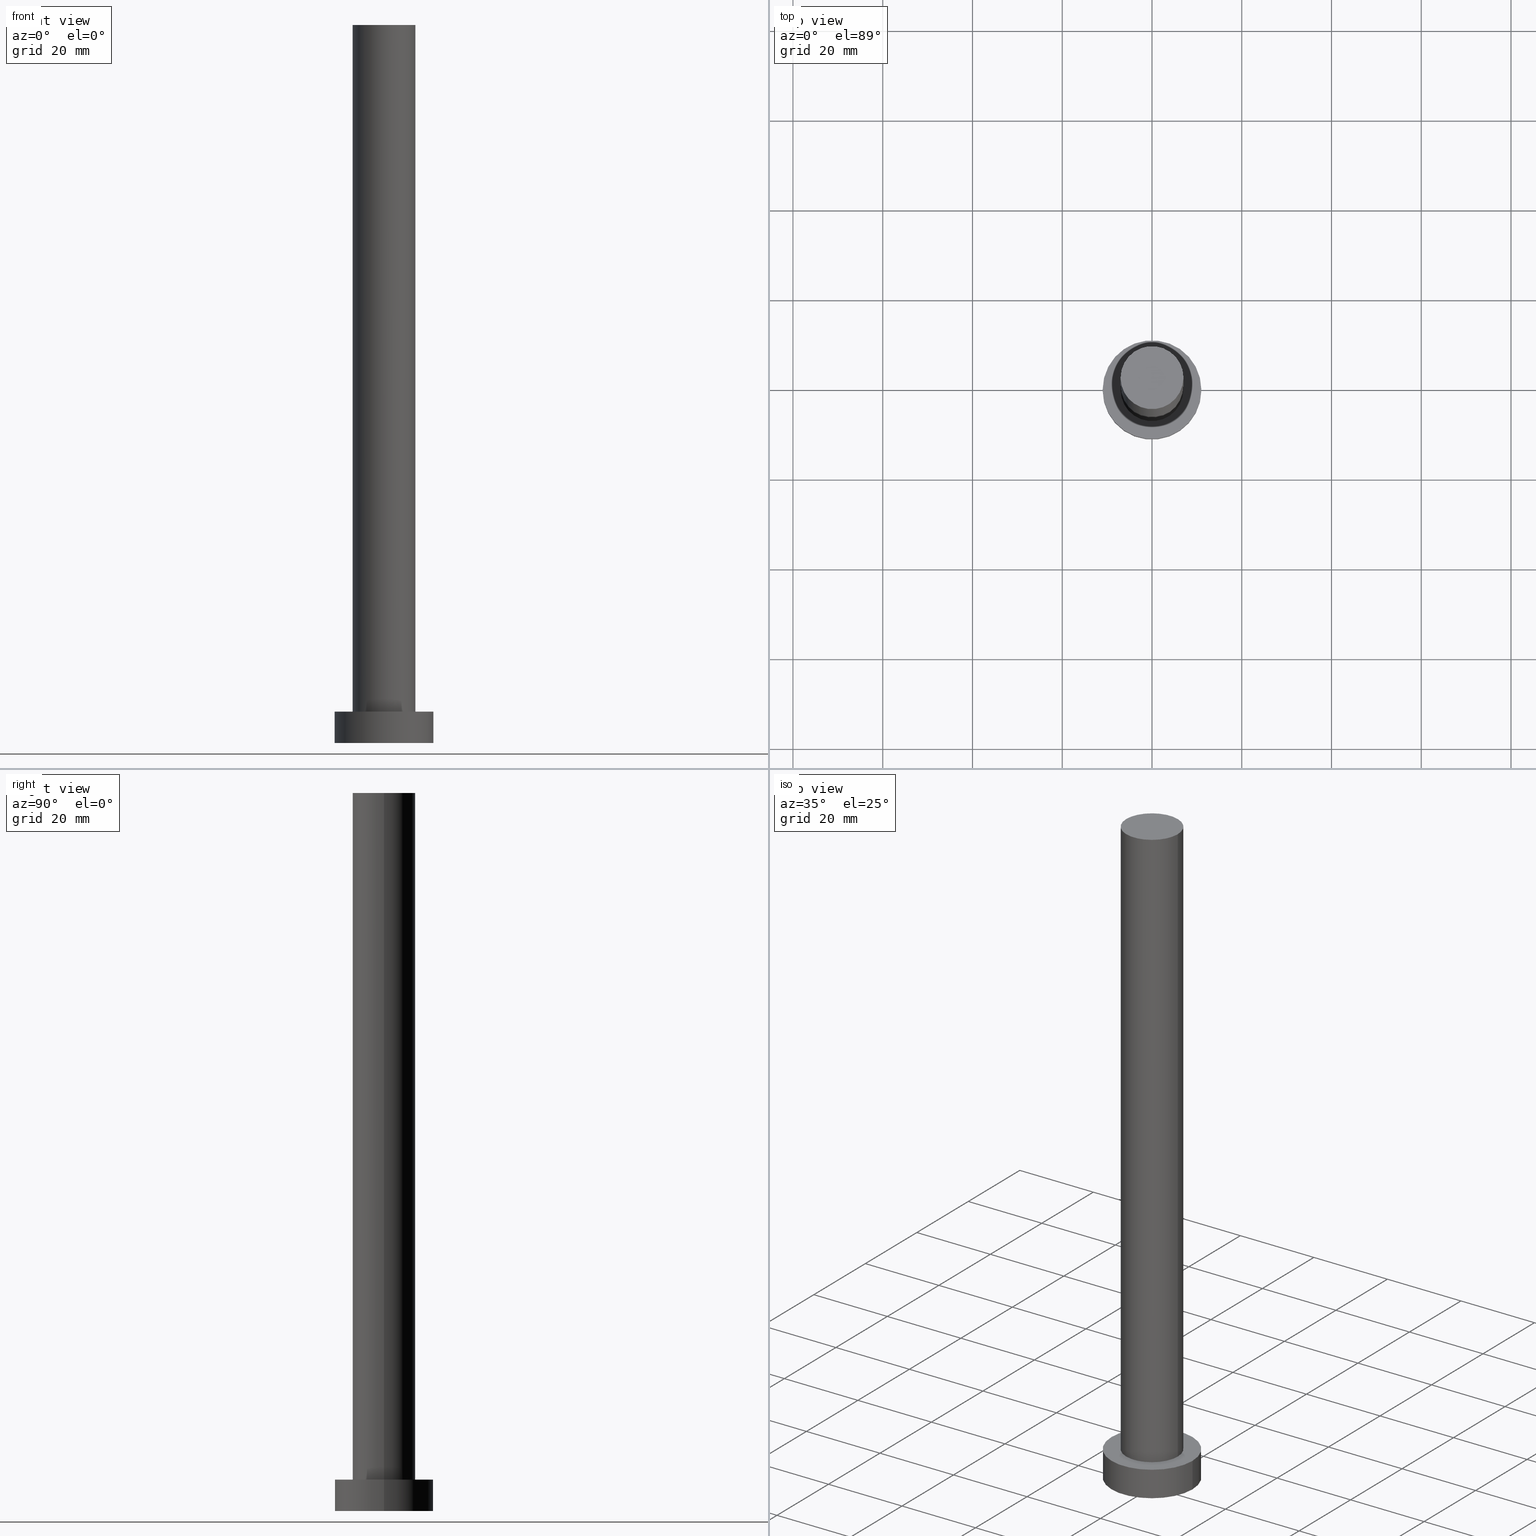
[diagram: canonical four-view strip — front | top / right | iso, engineering-drawing reading convention]
A machine part, canonical four-view strip (front | top / right | iso — engineering-drawing reading convention). The complete STEP part file that produces these views, byte-faithful:
ISO-10303-21;
HEADER;
FILE_DESCRIPTION (( 'STEP AP203' ),
    '1' );
FILE_NAME ('0e84.STEP',
    '2023-02-13T10:16:42',
    ( '' ),
    ( '' ),
    'SwSTEP 2.0',
    'SolidWorks 2019',
    '' );
FILE_SCHEMA (( 'CONFIG_CONTROL_DESIGN' ));
ENDSEC;

DATA;
#1 = ORIENTED_EDGE ( 'NONE', *, *, #249, .T. ) ;
#2 = CALENDAR_DATE ( 2023, 13, 2 ) ;
#3 = EDGE_LOOP ( 'NONE', ( #81, #193 ) ) ;
#4 = AXIS2_PLACEMENT_3D ( 'NONE', #6, #48, #118 ) ;
#5 = ORIENTED_EDGE ( 'NONE', *, *, #222, .F. ) ;
#6 = CARTESIAN_POINT ( 'NONE',  ( 0.000000000000000000, 0.000000000000000000, 7.000000000000000000 ) ) ;
#7 = ORIENTED_EDGE ( 'NONE', *, *, #63, .T. ) ;
#8 = CARTESIAN_POINT ( 'NONE',  ( 11.00000000000000000, 1.347111479062088405E-15, 7.000000000000000000 ) ) ;
#9 = SECURITY_CLASSIFICATION ( '', '', #200 ) ;
#10 = CARTESIAN_POINT ( 'NONE',  ( 11.00000000000000000, 1.347111479062088405E-15, 0.000000000000000000 ) ) ;
#11 = DIRECTION ( 'NONE',  ( 0.000000000000000000, 0.000000000000000000, 1.000000000000000000 ) ) ;
#12 = MANIFOLD_SOLID_BREP ( 'P�idat vysunut�m3', #236 ) ;
#13 = CARTESIAN_POINT ( 'NONE',  ( 0.000000000000000000, 0.000000000000000000, 7.000000000000000000 ) ) ;
#14 = CALENDAR_DATE ( 2023, 13, 2 ) ;
#15 = ADVANCED_FACE ( 'NONE', ( #44 ), #82, .F. ) ;
#16 = APPROVAL_PERSON_ORGANIZATION ( #53, #89, #37 ) ;
#17 = DIRECTION ( 'NONE',  ( 1.000000000000000000, 0.000000000000000000, -0.000000000000000000 ) ) ;
#18 = EDGE_LOOP ( 'NONE', ( #95, #172, #225, #134 ) ) ;
#19 = PERSON_AND_ORGANIZATION_ROLE ( 'creator' ) ;
#20 = FACE_OUTER_BOUND ( 'NONE', #114, .T. ) ;
#21 = VERTEX_POINT ( 'NONE', #83 ) ;
#22 = PERSON_AND_ORGANIZATION_ROLE ( 'creator' ) ;
#23 = CARTESIAN_POINT ( 'NONE',  ( 7.000000000000000888, 8.572527594031474176E-16, 160.0000000000000000 ) ) ;
#24 = DIRECTION ( 'NONE',  ( 0.000000000000000000, 0.000000000000000000, 1.000000000000000000 ) ) ;
#25 = DATE_AND_TIME ( #2, #52 ) ;
#26 = ORIENTED_EDGE ( 'NONE', *, *, #35, .F. ) ;
#27 = CARTESIAN_POINT ( 'NONE',  ( -11.00000000000000000, 0.000000000000000000, 0.000000000000000000 ) ) ;
#28 = DIRECTION ( 'NONE',  ( 1.000000000000000000, 0.000000000000000000, 0.000000000000000000 ) ) ;
#29 = FACE_OUTER_BOUND ( 'NONE', #18, .T. ) ;
#30 = EDGE_CURVE ( 'NONE', #21, #197, #61, .T. ) ;
#31 = VECTOR ( 'NONE', #156, 1000.000000000000000 ) ;
#32 = CARTESIAN_POINT ( 'NONE',  ( -7.000000000000000888, 0.000000000000000000, 160.0000000000000000 ) ) ;
#33 = AXIS2_PLACEMENT_3D ( 'NONE', #121, #11, #251 ) ;
#34 = PERSON_AND_ORGANIZATION ( #232, #137 ) ;
#35 = EDGE_CURVE ( 'NONE', #21, #97, #148, .T. ) ;
#36 = FACE_BOUND ( 'NONE', #112, .T. ) ;
#37 = APPROVAL_ROLE ( '' ) ;
#38 =( GEOMETRIC_REPRESENTATION_CONTEXT ( 3 ) GLOBAL_UNCERTAINTY_ASSIGNED_CONTEXT ( ( #41 ) ) GLOBAL_UNIT_ASSIGNED_CONTEXT ( ( #210, #170, #174 ) ) REPRESENTATION_CONTEXT ( 'NONE', 'WORKASPACE' ) );
#39 = APPROVAL_STATUS ( 'not_yet_approved' ) ;
#40 = CARTESIAN_POINT ( 'NONE',  ( 0.000000000000000000, 0.000000000000000000, 160.0000000000000000 ) ) ;
#41 = UNCERTAINTY_MEASURE_WITH_UNIT (LENGTH_MEASURE( 1.000000000000000082E-05 ), #210, 'distance_accuracy_value', 'NONE');
#42 = ORIENTED_EDGE ( 'NONE', *, *, #163, .T. ) ;
#43 = DATE_AND_TIME ( #60, #186 ) ;
#44 = FACE_OUTER_BOUND ( 'NONE', #3, .T. ) ;
#45 = CARTESIAN_POINT ( 'NONE',  ( 0.000000000000000000, 0.000000000000000000, 160.0000000000000000 ) ) ;
#46 = PERSON_AND_ORGANIZATION ( #232, #137 ) ;
#47 = LOCAL_TIME ( 11, 16, 42.00000000000000000, #129 ) ;
#48 = DIRECTION ( 'NONE',  ( -0.000000000000000000, -0.000000000000000000, -1.000000000000000000 ) ) ;
#49 = CC_DESIGN_PERSON_AND_ORGANIZATION_ASSIGNMENT ( #62, #199, ( #215 ) ) ;
#50 = DIRECTION ( 'NONE',  ( -1.000000000000000000, 0.000000000000000000, 0.000000000000000000 ) ) ;
#51 = CARTESIAN_POINT ( 'NONE',  ( 0.000000000000000000, 0.000000000000000000, 160.0000000000000000 ) ) ;
#52 = LOCAL_TIME ( 11, 16, 42.00000000000000000, #223 ) ;
#53 = PERSON_AND_ORGANIZATION ( #232, #137 ) ;
#54 = ADVANCED_FACE ( 'NONE', ( #224 ), #181, .T. ) ;
#55 = CARTESIAN_POINT ( 'NONE',  ( 7.000000000000000888, 8.572527594031474176E-16, 7.000000000000000000 ) ) ;
#56 = APPROVAL_DATE_TIME ( #235, #89 ) ;
#57 = APPROVAL_STATUS ( 'not_yet_approved' ) ;
#58 = AXIS2_PLACEMENT_3D ( 'NONE', #45, #24, #98 ) ;
#59 = EDGE_CURVE ( 'NONE', #111, #161, #246, .T. ) ;
#60 = CALENDAR_DATE ( 2023, 13, 2 ) ;
#61 = LINE ( 'NONE', #23, #31 ) ;
#62 = PERSON_AND_ORGANIZATION ( #232, #137 ) ;
#63 = EDGE_CURVE ( 'NONE', #111, #84, #167, .T. ) ;
#64 = CARTESIAN_POINT ( 'NONE',  ( 0.000000000000000000, 0.000000000000000000, 0.000000000000000000 ) ) ;
#65 = ORIENTED_EDGE ( 'NONE', *, *, #35, .T. ) ;
#66 = CARTESIAN_POINT ( 'NONE',  ( 0.000000000000000000, 0.000000000000000000, 7.000000000000000000 ) ) ;
#67 = DIRECTION ( 'NONE',  ( -0.000000000000000000, -0.000000000000000000, -1.000000000000000000 ) ) ;
#68 = FACE_OUTER_BOUND ( 'NONE', #133, .T. ) ;
#69 = CARTESIAN_POINT ( 'NONE',  ( 0.000000000000000000, 0.000000000000000000, 0.000000000000000000 ) ) ;
#70 = CYLINDRICAL_SURFACE ( 'NONE', #78, 11.00000000000000000 ) ;
#71 = APPROVAL ( #39, 'NEUR�EN�' ) ;
#72 = DATE_AND_TIME ( #14, #47 ) ;
#73 = AXIS2_PLACEMENT_3D ( 'NONE', #69, #139, #28 ) ;
#74 = CARTESIAN_POINT ( 'NONE',  ( 0.000000000000000000, 0.000000000000000000, 7.000000000000000000 ) ) ;
#75 = EDGE_CURVE ( 'NONE', #144, #197, #106, .T. ) ;
#76 = CALENDAR_DATE ( 2023, 13, 2 ) ;
#77 = APPLICATION_CONTEXT ( 'configuration controlled 3d designs of mechanical parts and assemblies' ) ;
#78 = AXIS2_PLACEMENT_3D ( 'NONE', #13, #227, #207 ) ;
#79 = DIRECTION ( 'NONE',  ( 1.000000000000000000, 0.000000000000000000, 0.000000000000000000 ) ) ;
#80 = PERSON_AND_ORGANIZATION ( #232, #137 ) ;
#81 = ORIENTED_EDGE ( 'NONE', *, *, #177, .F. ) ;
#82 = PLANE ( 'NONE',  #253 ) ;
#83 = CARTESIAN_POINT ( 'NONE',  ( 7.000000000000000888, 8.572527594031474176E-16, 160.0000000000000000 ) ) ;
#84 = VERTEX_POINT ( 'NONE', #27 ) ;
#85 = AXIS2_PLACEMENT_3D ( 'NONE', #152, #92, #17 ) ;
#86 = DIRECTION ( 'NONE',  ( 0.000000000000000000, 0.000000000000000000, 1.000000000000000000 ) ) ;
#87 = CARTESIAN_POINT ( 'NONE',  ( 0.000000000000000000, 0.000000000000000000, 0.000000000000000000 ) ) ;
#88 = AXIS2_PLACEMENT_3D ( 'NONE', #147, #90, #128 ) ;
#89 = APPROVAL ( #212, 'NEUR�EN�' ) ;
#90 = DIRECTION ( 'NONE',  ( 0.000000000000000000, 0.000000000000000000, 1.000000000000000000 ) ) ;
#91 = LOCAL_TIME ( 11, 16, 42.00000000000000000, #254 ) ;
#92 = DIRECTION ( 'NONE',  ( 0.000000000000000000, 0.000000000000000000, 1.000000000000000000 ) ) ;
#93 = DIRECTION ( 'NONE',  ( 1.000000000000000000, 0.000000000000000000, 0.000000000000000000 ) ) ;
#94 = VERTEX_POINT ( 'NONE', #10 ) ;
#95 = ORIENTED_EDGE ( 'NONE', *, *, #30, .F. ) ;
#96 = AXIS2_PLACEMENT_3D ( 'NONE', #87, #164, #135 ) ;
#97 = VERTEX_POINT ( 'NONE', #203 ) ;
#98 = DIRECTION ( 'NONE',  ( 1.000000000000000000, 0.000000000000000000, 0.000000000000000000 ) ) ;
#99 = DATE_TIME_ROLE ( 'classification_date' ) ;
#100 = DIRECTION ( 'NONE',  ( -0.000000000000000000, -0.000000000000000000, -1.000000000000000000 ) ) ;
#101 = VECTOR ( 'NONE', #104, 1000.000000000000000 ) ;
#102 = VECTOR ( 'NONE', #113, 1000.000000000000000 ) ;
#103 = CC_DESIGN_APPROVAL ( #218, ( #9 ) ) ;
#104 = DIRECTION ( 'NONE',  ( -0.000000000000000000, -0.000000000000000000, -1.000000000000000000 ) ) ;
#105 = DIRECTION ( 'NONE',  ( -0.000000000000000000, -0.000000000000000000, -1.000000000000000000 ) ) ;
#106 = CIRCLE ( 'NONE', #119, 7.000000000000000888 ) ;
#107 = DIRECTION ( 'NONE',  ( 1.000000000000000000, 0.000000000000000000, 0.000000000000000000 ) ) ;
#108 = PERSON_AND_ORGANIZATION_ROLE ( 'design_owner' ) ;
#109 = ADVANCED_FACE ( 'NONE', ( #68 ), #252, .T. ) ;
#110 = DIRECTION ( 'NONE',  ( 0.000000000000000000, 0.000000000000000000, 1.000000000000000000 ) ) ;
#111 = VERTEX_POINT ( 'NONE', #136 ) ;
#112 = EDGE_LOOP ( 'NONE', ( #198, #5 ) ) ;
#113 = DIRECTION ( 'NONE',  ( -0.000000000000000000, -0.000000000000000000, -1.000000000000000000 ) ) ;
#114 = EDGE_LOOP ( 'NONE', ( #42, #65 ) ) ;
#115 = VECTOR ( 'NONE', #100, 1000.000000000000000 ) ;
#116 = CC_DESIGN_PERSON_AND_ORGANIZATION_ASSIGNMENT ( #46, #158, ( #9 ) ) ;
#117 = CC_DESIGN_APPROVAL ( #71, ( #215 ) ) ;
#118 = DIRECTION ( 'NONE',  ( -1.000000000000000000, 0.000000000000000000, 0.000000000000000000 ) ) ;
#119 = AXIS2_PLACEMENT_3D ( 'NONE', #123, #86, #165 ) ;
#120 = CC_DESIGN_APPROVAL ( #89, ( #182 ) ) ;
#121 = CARTESIAN_POINT ( 'NONE',  ( 0.000000000000000000, 0.000000000000000000, 160.0000000000000000 ) ) ;
#122 = EDGE_CURVE ( 'NONE', #94, #84, #142, .T. ) ;
#123 = CARTESIAN_POINT ( 'NONE',  ( 0.000000000000000000, 0.000000000000000000, 7.000000000000000000 ) ) ;
#124 = AXIS2_PLACEMENT_3D ( 'NONE', #130, #194, #93 ) ;
#125 = MECHANICAL_CONTEXT ( 'NONE', #140, 'mechanical' ) ;
#126 = CC_DESIGN_SECURITY_CLASSIFICATION ( #9, ( #215 ) ) ;
#127 = PERSON_AND_ORGANIZATION ( #232, #137 ) ;
#128 = DIRECTION ( 'NONE',  ( 1.000000000000000000, 0.000000000000000000, 0.000000000000000000 ) ) ;
#129 = COORDINATED_UNIVERSAL_TIME_OFFSET ( 1, 0, .AHEAD. ) ;
#130 = CARTESIAN_POINT ( 'NONE',  ( 0.000000000000000000, 0.000000000000000000, 7.000000000000000000 ) ) ;
#131 = ADVANCED_FACE ( 'NONE', ( #138 ), #70, .T. ) ;
#132 = COORDINATED_UNIVERSAL_TIME_OFFSET ( 1, 0, .AHEAD. ) ;
#133 = EDGE_LOOP ( 'NONE', ( #26, #237, #154, #245 ) ) ;
#134 = ORIENTED_EDGE ( 'NONE', *, *, #75, .T. ) ;
#135 = DIRECTION ( 'NONE',  ( 1.000000000000000000, 0.000000000000000000, 0.000000000000000000 ) ) ;
#136 = CARTESIAN_POINT ( 'NONE',  ( -11.00000000000000000, 0.000000000000000000, 7.000000000000000000 ) ) ;
#137 = ORGANIZATION ( 'NEUR�EN�', 'NEUR�EN�', '' ) ;
#138 = FACE_OUTER_BOUND ( 'NONE', #179, .T. ) ;
#139 = DIRECTION ( 'NONE',  ( 0.000000000000000000, 0.000000000000000000, 1.000000000000000000 ) ) ;
#140 = APPLICATION_CONTEXT ( 'configuration controlled 3d designs of mechanical parts and assemblies' ) ;
#141 = CARTESIAN_POINT ( 'NONE',  ( 0.000000000000000000, 0.000000000000000000, 160.0000000000000000 ) ) ;
#142 = CIRCLE ( 'NONE', #96, 11.00000000000000000 ) ;
#143 = DIRECTION ( 'NONE',  ( 1.000000000000000000, 0.000000000000000000, -0.000000000000000000 ) ) ;
#144 = VERTEX_POINT ( 'NONE', #226 ) ;
#145 = PRODUCT_RELATED_PRODUCT_CATEGORY ( 'detail', '', ( #146 ) ) ;
#146 = PRODUCT ( '0e84', '0e84', '', ( #125 ) ) ;
#147 = CARTESIAN_POINT ( 'NONE',  ( 0.000000000000000000, 0.000000000000000000, 0.000000000000000000 ) ) ;
#148 = CIRCLE ( 'NONE', #58, 7.000000000000000888 ) ;
#149 = DESIGN_CONTEXT ( 'detailed design', #77, 'design' ) ;
#150 = ADVANCED_FACE ( 'NONE', ( #29 ), #229, .T. ) ;
#151 = ORIENTED_EDGE ( 'NONE', *, *, #59, .T. ) ;
#152 = CARTESIAN_POINT ( 'NONE',  ( 0.000000000000000000, 0.000000000000000000, 7.000000000000000000 ) ) ;
#153 = ORIENTED_EDGE ( 'NONE', *, *, #189, .T. ) ;
#154 = ORIENTED_EDGE ( 'NONE', *, *, #222, .T. ) ;
#155 = APPROVAL_PERSON_ORGANIZATION ( #80, #218, #183 ) ;
#156 = DIRECTION ( 'NONE',  ( -0.000000000000000000, -0.000000000000000000, -1.000000000000000000 ) ) ;
#157 = APPROVAL_DATE_TIME ( #244, #71 ) ;
#158 = PERSON_AND_ORGANIZATION_ROLE ( 'classification_officer' ) ;
#159 = CC_DESIGN_DATE_AND_TIME_ASSIGNMENT ( #72, #214, ( #182 ) ) ;
#160 = AXIS2_PLACEMENT_3D ( 'NONE', #66, #230, #107 ) ;
#161 = VERTEX_POINT ( 'NONE', #185 ) ;
#162 = AXIS2_PLACEMENT_3D ( 'NONE', #74, #110, #79 ) ;
#163 = EDGE_CURVE ( 'NONE', #97, #21, #221, .T. ) ;
#164 = DIRECTION ( 'NONE',  ( 0.000000000000000000, 0.000000000000000000, 1.000000000000000000 ) ) ;
#165 = DIRECTION ( 'NONE',  ( 1.000000000000000000, 0.000000000000000000, 0.000000000000000000 ) ) ;
#166 = CARTESIAN_POINT ( 'NONE',  ( -11.00000000000000000, 0.000000000000000000, 7.000000000000000000 ) ) ;
#167 = LINE ( 'NONE', #166, #101 ) ;
#168 = ORIENTED_EDGE ( 'NONE', *, *, #59, .F. ) ;
#169 = AXIS2_PLACEMENT_3D ( 'NONE', #40, #188, #143 ) ;
#170 =( NAMED_UNIT ( * ) PLANE_ANGLE_UNIT ( ) SI_UNIT ( $, .RADIAN. ) );
#171 = COORDINATED_UNIVERSAL_TIME_OFFSET ( 1, 0, .AHEAD. ) ;
#172 = ORIENTED_EDGE ( 'NONE', *, *, #163, .F. ) ;
#173 = EDGE_CURVE ( 'NONE', #97, #144, #204, .T. ) ;
#174 =( NAMED_UNIT ( * ) SI_UNIT ( $, .STERADIAN. ) SOLID_ANGLE_UNIT ( ) );
#175 = APPROVAL_PERSON_ORGANIZATION ( #127, #71, #191 ) ;
#176 = ADVANCED_BREP_SHAPE_REPRESENTATION ( '0e84', ( #12, #88 ), #38 ) ;
#177 = EDGE_CURVE ( 'NONE', #84, #94, #228, .T. ) ;
#178 = ORIENTED_EDGE ( 'NONE', *, *, #249, .F. ) ;
#179 = EDGE_LOOP ( 'NONE', ( #247, #168, #7, #201 ) ) ;
#180 = AXIS2_PLACEMENT_3D ( 'NONE', #141, #105, #50 ) ;
#181 = CYLINDRICAL_SURFACE ( 'NONE', #4, 11.00000000000000000 ) ;
#182 = PRODUCT_DEFINITION ( 'NEZN�M�', '', #215, #149 ) ;
#183 = APPROVAL_ROLE ( '' ) ;
#184 = LINE ( 'NONE', #8, #102 ) ;
#185 = CARTESIAN_POINT ( 'NONE',  ( 11.00000000000000000, 1.347111479062088405E-15, 7.000000000000000000 ) ) ;
#186 = LOCAL_TIME ( 11, 16, 42.00000000000000000, #132 ) ;
#187 = PERSON_AND_ORGANIZATION ( #232, #137 ) ;
#188 = DIRECTION ( 'NONE',  ( 0.000000000000000000, 0.000000000000000000, 1.000000000000000000 ) ) ;
#189 = EDGE_CURVE ( 'NONE', #161, #94, #184, .T. ) ;
#190 = PLANE ( 'NONE',  #85 ) ;
#191 = APPROVAL_ROLE ( '' ) ;
#192 = PRODUCT_DEFINITION_SHAPE ( 'NONE', 'NONE',  #182 ) ;
#193 = ORIENTED_EDGE ( 'NONE', *, *, #122, .F. ) ;
#194 = DIRECTION ( 'NONE',  ( 0.000000000000000000, 0.000000000000000000, 1.000000000000000000 ) ) ;
#195 = LOCAL_TIME ( 11, 16, 42.00000000000000000, #171 ) ;
#196 = PERSON_AND_ORGANIZATION ( #232, #137 ) ;
#197 = VERTEX_POINT ( 'NONE', #55 ) ;
#198 = ORIENTED_EDGE ( 'NONE', *, *, #75, .F. ) ;
#199 = PERSON_AND_ORGANIZATION_ROLE ( 'design_supplier' ) ;
#200 = SECURITY_CLASSIFICATION_LEVEL ( 'unclassified' ) ;
#201 = ORIENTED_EDGE ( 'NONE', *, *, #177, .T. ) ;
#202 = CC_DESIGN_DATE_AND_TIME_ASSIGNMENT ( #25, #99, ( #9 ) ) ;
#203 = CARTESIAN_POINT ( 'NONE',  ( -7.000000000000000888, 0.000000000000000000, 160.0000000000000000 ) ) ;
#204 = LINE ( 'NONE', #32, #115 ) ;
#205 = CIRCLE ( 'NONE', #162, 11.00000000000000000 ) ;
#206 = CC_DESIGN_PERSON_AND_ORGANIZATION_ASSIGNMENT ( #196, #22, ( #215 ) ) ;
#207 = DIRECTION ( 'NONE',  ( -1.000000000000000000, 0.000000000000000000, 0.000000000000000000 ) ) ;
#208 = DIRECTION ( 'NONE',  ( -1.000000000000000000, 0.000000000000000000, 0.000000000000000000 ) ) ;
#209 = CC_DESIGN_PERSON_AND_ORGANIZATION_ASSIGNMENT ( #187, #19, ( #182 ) ) ;
#210 =( LENGTH_UNIT ( ) NAMED_UNIT ( * ) SI_UNIT ( .MILLI., .METRE. ) );
#211 = PLANE ( 'NONE',  #169 ) ;
#212 = APPROVAL_STATUS ( 'not_yet_approved' ) ;
#213 = AXIS2_PLACEMENT_3D ( 'NONE', #51, #67, #208 ) ;
#214 = DATE_TIME_ROLE ( 'creation_date' ) ;
#215 = PRODUCT_DEFINITION_FORMATION_WITH_SPECIFIED_SOURCE ( 'LIBOVOLN�', '', #146, .NOT_KNOWN. ) ;
#216 = SHAPE_DEFINITION_REPRESENTATION ( #192, #176 ) ;
#217 = EDGE_LOOP ( 'NONE', ( #178, #153, #240, #242 ) ) ;
#218 = APPROVAL ( #57, 'NEUR�EN�' ) ;
#219 = EDGE_LOOP ( 'NONE', ( #151, #1 ) ) ;
#220 = DIRECTION ( 'NONE',  ( 1.000000000000000000, 0.000000000000000000, -0.000000000000000000 ) ) ;
#221 = CIRCLE ( 'NONE', #33, 7.000000000000000888 ) ;
#222 = EDGE_CURVE ( 'NONE', #197, #144, #248, .T. ) ;
#223 = COORDINATED_UNIVERSAL_TIME_OFFSET ( 1, 0, .AHEAD. ) ;
#224 = FACE_OUTER_BOUND ( 'NONE', #217, .T. ) ;
#225 = ORIENTED_EDGE ( 'NONE', *, *, #173, .T. ) ;
#226 = CARTESIAN_POINT ( 'NONE',  ( -7.000000000000000888, 0.000000000000000000, 7.000000000000000000 ) ) ;
#227 = DIRECTION ( 'NONE',  ( -0.000000000000000000, -0.000000000000000000, -1.000000000000000000 ) ) ;
#228 = CIRCLE ( 'NONE', #73, 11.00000000000000000 ) ;
#229 = CYLINDRICAL_SURFACE ( 'NONE', #180, 7.000000000000000888 ) ;
#230 = DIRECTION ( 'NONE',  ( 0.000000000000000000, 0.000000000000000000, 1.000000000000000000 ) ) ;
#231 = CC_DESIGN_PERSON_AND_ORGANIZATION_ASSIGNMENT ( #34, #108, ( #146 ) ) ;
#232 = PERSON ( 'NEUR�EN�', 'NEUR�EN�', 'NEUR�EN�', ('NEUR�EN�'), ('NEUR�EN�'), ('NEUR�EN�') ) ;
#233 = FACE_OUTER_BOUND ( 'NONE', #219, .T. ) ;
#234 = APPLICATION_PROTOCOL_DEFINITION ( 'international standard', 'config_control_design', 1994, #77 ) ;
#235 = DATE_AND_TIME ( #76, #91 ) ;
#236 = CLOSED_SHELL ( 'NONE', ( #109, #54, #131, #250, #15, #150, #239 ) ) ;
#237 = ORIENTED_EDGE ( 'NONE', *, *, #30, .T. ) ;
#238 = APPLICATION_PROTOCOL_DEFINITION ( 'international standard', 'config_control_design', 1994, #140 ) ;
#239 = ADVANCED_FACE ( 'NONE', ( #20 ), #211, .T. ) ;
#240 = ORIENTED_EDGE ( 'NONE', *, *, #122, .T. ) ;
#241 = APPROVAL_DATE_TIME ( #43, #218 ) ;
#242 = ORIENTED_EDGE ( 'NONE', *, *, #63, .F. ) ;
#243 = DIRECTION ( 'NONE',  ( 0.000000000000000000, 0.000000000000000000, 1.000000000000000000 ) ) ;
#244 = DATE_AND_TIME ( #255, #195 ) ;
#245 = ORIENTED_EDGE ( 'NONE', *, *, #173, .F. ) ;
#246 = CIRCLE ( 'NONE', #160, 11.00000000000000000 ) ;
#247 = ORIENTED_EDGE ( 'NONE', *, *, #189, .F. ) ;
#248 = CIRCLE ( 'NONE', #124, 7.000000000000000888 ) ;
#249 = EDGE_CURVE ( 'NONE', #161, #111, #205, .T. ) ;
#250 = ADVANCED_FACE ( 'NONE', ( #36, #233 ), #190, .T. ) ;
#251 = DIRECTION ( 'NONE',  ( 1.000000000000000000, 0.000000000000000000, 0.000000000000000000 ) ) ;
#252 = CYLINDRICAL_SURFACE ( 'NONE', #213, 7.000000000000000888 ) ;
#253 = AXIS2_PLACEMENT_3D ( 'NONE', #64, #243, #220 ) ;
#254 = COORDINATED_UNIVERSAL_TIME_OFFSET ( 1, 0, .AHEAD. ) ;
#255 = CALENDAR_DATE ( 2023, 13, 2 ) ;
ENDSEC;
END-ISO-10303-21;
